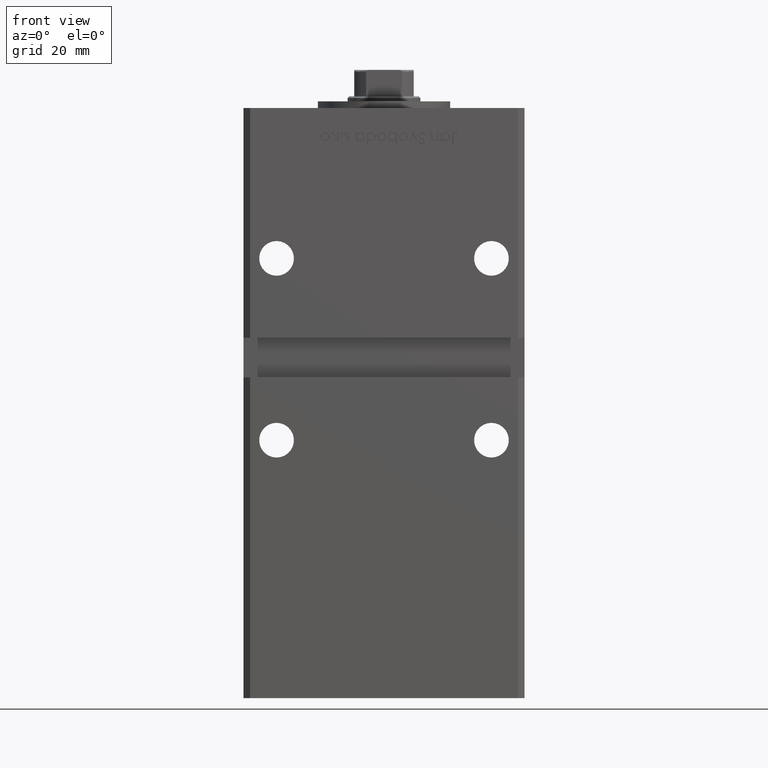
[diagram: clean part render]
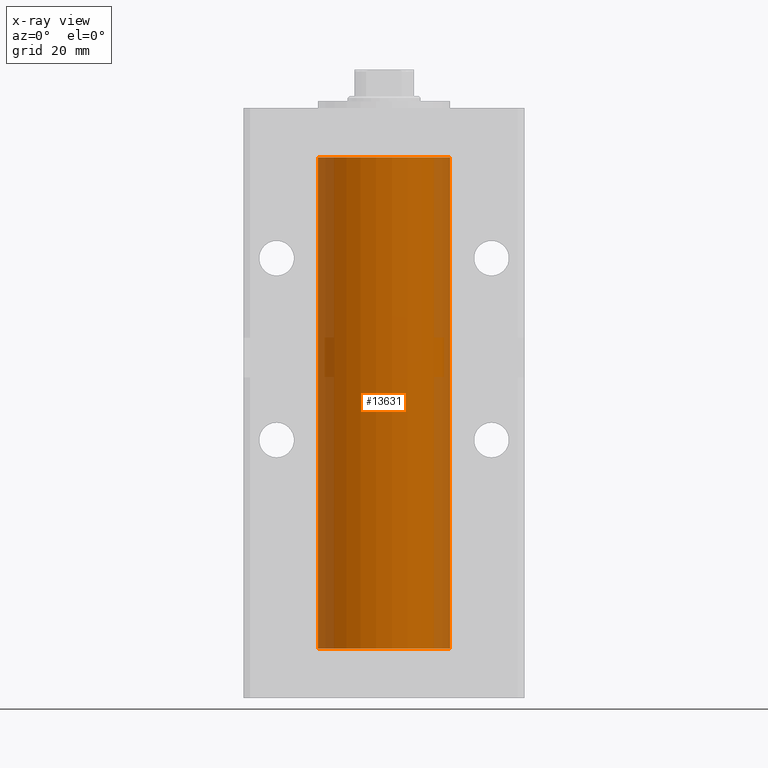
[diagram: x-ray — body ghosted, one internal face saturated and labeled with its STEP entity id]
A machine part, front view, then the same camera in x-ray: the body is ghosted and one INTERNAL B-rep face — a face not visible from any outside direction — is saturated and labeled: STEP entity #13631.
In plain terms, the highlighted cylindrical surface (partial cylindrical patch) has radius 20 mm, axis along (-0, -0, -1).
Its self-contained STEP definition (entity closure, byte-faithful):
#1063 = EDGE_CURVE ( 'NONE', #18084, #45680, #29343, .T. ) ;
#4584 = ORIENTED_EDGE ( 'NONE', *, *, #1063, .F. ) ;
#5369 = VERTEX_POINT ( 'NONE', #52242 ) ;
#5845 = DIRECTION ( 'NONE',  ( 1.000000000000000000, 0.000000000000000000, 0.000000000000000000 ) ) ;
#6169 = AXIS2_PLACEMENT_3D ( 'NONE', #46930, #9871, #5845 ) ;
#6669 = CARTESIAN_POINT ( 'NONE',  ( -20.00000000000000000, 0.000000000000000000, 0.000000000000000000 ) ) ;
#7863 = LINE ( 'NONE', #41420, #17334 ) ;
#9871 = DIRECTION ( 'NONE',  ( -0.000000000000000000, 0.000000000000000000, 1.000000000000000000 ) ) ;
#13631 = ADVANCED_FACE ( 'NONE', ( #38293 ), #30236, .F. ) ;
#14128 = DIRECTION ( 'NONE',  ( -0.000000000000000000, -0.000000000000000000, -1.000000000000000000 ) ) ;
#14887 = CARTESIAN_POINT ( 'NONE',  ( 20.00000000000000000, 2.449293598294706513E-15, 0.000000000000000000 ) ) ;
#16729 = DIRECTION ( 'NONE',  ( -0.000000000000000000, -0.000000000000000000, -1.000000000000000000 ) ) ;
#17334 = VECTOR ( 'NONE', #16729, 1000.000000000000000 ) ;
#18084 = VERTEX_POINT ( 'NONE', #6669 ) ;
#18862 = EDGE_CURVE ( 'NONE', #5369, #43428, #21044, .T. ) ;
#19456 = VECTOR ( 'NONE', #26241, 1000.000000000000000 ) ;
#21044 = CIRCLE ( 'NONE', #27043, 20.00000000000000000 ) ;
#23005 = CARTESIAN_POINT ( 'NONE',  ( 20.00000000000000000, 2.449293598294706513E-15, 148.5000000000000000 ) ) ;
#23468 = EDGE_CURVE ( 'NONE', #43428, #45680, #27031, .T. ) ;
#25206 = CARTESIAN_POINT ( 'NONE',  ( 0.000000000000000000, 0.000000000000000000, 148.5000000000000000 ) ) ;
#25426 = DIRECTION ( 'NONE',  ( -1.000000000000000000, 0.000000000000000000, 0.000000000000000000 ) ) ;
#26241 = DIRECTION ( 'NONE',  ( -0.000000000000000000, -0.000000000000000000, -1.000000000000000000 ) ) ;
#26463 = ORIENTED_EDGE ( 'NONE', *, *, #18862, .T. ) ;
#27031 = LINE ( 'NONE', #23005, #19456 ) ;
#27043 = AXIS2_PLACEMENT_3D ( 'NONE', #25206, #41588, #29506 ) ;
#29343 = CIRCLE ( 'NONE', #6169, 20.00000000000000000 ) ;
#29506 = DIRECTION ( 'NONE',  ( 1.000000000000000000, 0.000000000000000000, 0.000000000000000000 ) ) ;
#30236 = CYLINDRICAL_SURFACE ( 'NONE', #49299, 20.00000000000000000 ) ;
#35294 = EDGE_CURVE ( 'NONE', #5369, #18084, #7863, .T. ) ;
#38293 = FACE_OUTER_BOUND ( 'NONE', #45738, .T. ) ;
#41420 = CARTESIAN_POINT ( 'NONE',  ( -20.00000000000000000, 0.000000000000000000, 148.5000000000000000 ) ) ;
#41588 = DIRECTION ( 'NONE',  ( -0.000000000000000000, 0.000000000000000000, 1.000000000000000000 ) ) ;
#42590 = CARTESIAN_POINT ( 'NONE',  ( 0.000000000000000000, 0.000000000000000000, 148.5000000000000000 ) ) ;
#43428 = VERTEX_POINT ( 'NONE', #45242 ) ;
#45242 = CARTESIAN_POINT ( 'NONE',  ( 20.00000000000000000, 2.449293598294706513E-15, 148.5000000000000000 ) ) ;
#45311 = ORIENTED_EDGE ( 'NONE', *, *, #23468, .T. ) ;
#45680 = VERTEX_POINT ( 'NONE', #14887 ) ;
#45738 = EDGE_LOOP ( 'NONE', ( #26463, #45311, #4584, #48363 ) ) ;
#46930 = CARTESIAN_POINT ( 'NONE',  ( 0.000000000000000000, 0.000000000000000000, 0.000000000000000000 ) ) ;
#48363 = ORIENTED_EDGE ( 'NONE', *, *, #35294, .F. ) ;
#49299 = AXIS2_PLACEMENT_3D ( 'NONE', #42590, #14128, #25426 ) ;
#52242 = CARTESIAN_POINT ( 'NONE',  ( -20.00000000000000000, 0.000000000000000000, 148.5000000000000000 ) ) ;